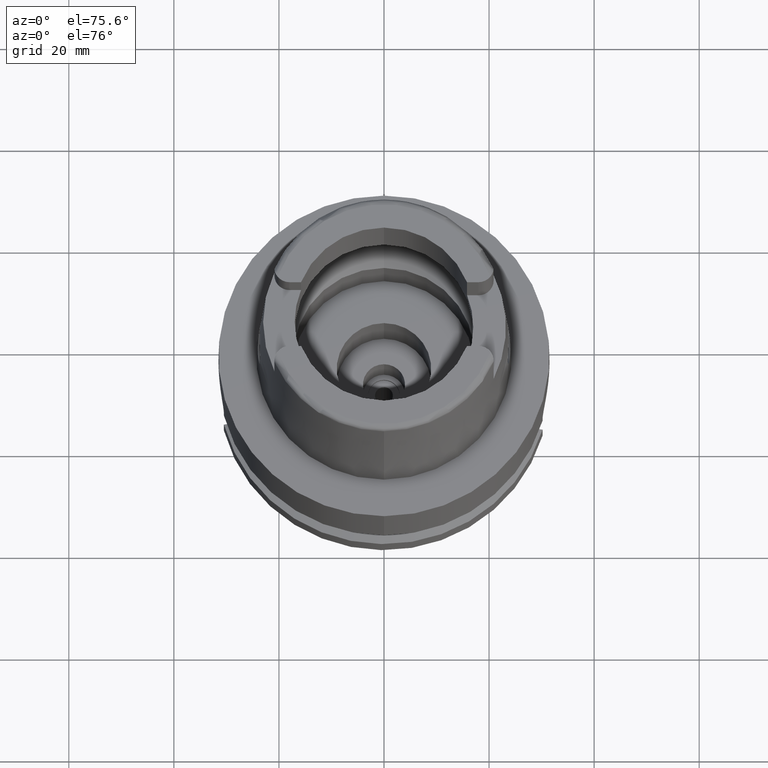
[diagram: clean part render]
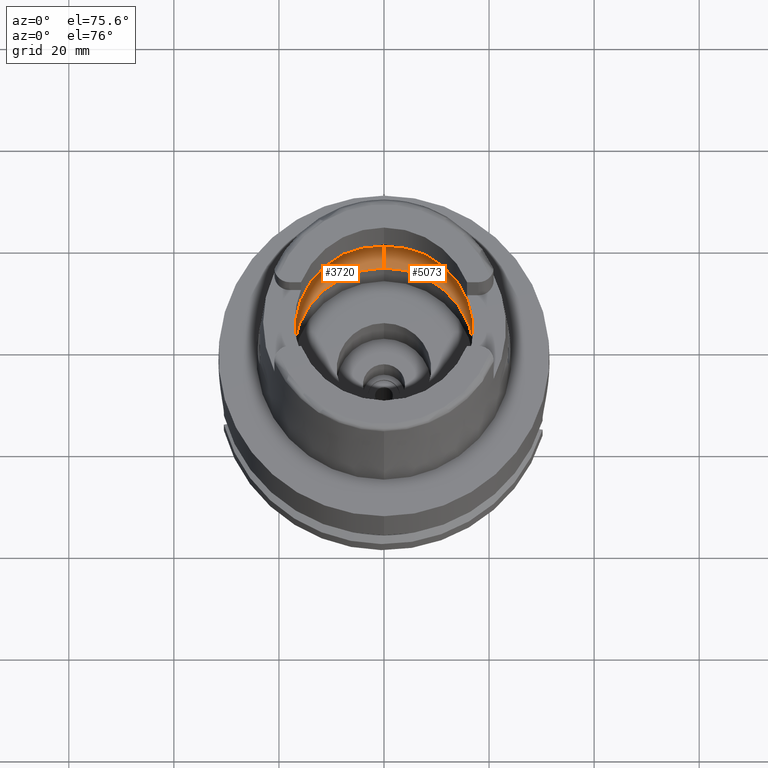
[diagram: same view with one multi-face feature highlighted, each face labeled with its STEP entity id]
A machine part, auxiliary view. The highlighted faces form ONE feature: a constant-radius fillet chain: 2 tangent blend faces with common blend radius 8 mm. The faces share edges in the B-rep.
Their STEP definitions:
[1] entity #5073 (Torus):
#65 = DIRECTION ( 'NONE',  ( 1.000000000000000000, 0.0000000000000000000, 0.0000000000000000000 ) ) ;
#118 = AXIS2_PLACEMENT_3D ( 'NONE', #5624, #868, #2601 ) ;
#164 = CARTESIAN_POINT ( 'NONE',  ( 19.84575864665999845, -2.479085262491000030, 6.186348233825000875 ) ) ;
#253 = DIRECTION ( 'NONE',  ( 0.0000000000000000000, -0.6562500000000006661, -0.7545435292281016393 ) ) ;
#258 = CARTESIAN_POINT ( 'NONE',  ( 19.92391832594157819, 1.379661882598573808, 5.512959091754853880 ) ) ;
#309 = ORIENTED_EDGE ( 'NONE', *, *, #5531, .F. ) ;
#391 = EDGE_CURVE ( 'NONE', #955, #5615, #1317, .T. ) ;
#407 = CARTESIAN_POINT ( 'NONE',  ( 19.92607280685966842, -1.317062051744477991, 5.488890658955079438 ) ) ;
#411 = ORIENTED_EDGE ( 'NONE', *, *, #391, .F. ) ;
#442 = B_SPLINE_CURVE_WITH_KNOTS ( 'NONE', 3,
 ( #2021, #4118, #1920, #1507, #1538, #3266, #3295, #3240, #258, #2444, #3668, #643, #1169, #3696, #4969 ),
 .UNSPECIFIED., .F., .F.,
 ( 4, 2, 2, 1, 1, 1, 2, 2, 4 ),
 ( 0.0000000000000000000, 0.2499999999999967804, 0.3749999999999953371, 0.4374999999999946709, 0.4687499999999943934, 0.4843749999999942824, 0.4921874999999941713, 0.4999999999999941158, 1.000000000000000000 ),
 .UNSPECIFIED. ) ;
#465 = CARTESIAN_POINT ( 'NONE',  ( 19.94340237805593219, -0.4850180019504579665, 5.274610396127643597 ) ) ;
#563 = TOROIDAL_SURFACE ( 'NONE', #3028, 12.00000000000000000, 8.000000000000000000 ) ;
#643 = CARTESIAN_POINT ( 'NONE',  ( 19.92547292124042002, 1.334858430821708408, 5.495617893788528718 ) ) ;
#674 = FACE_OUTER_BOUND ( 'NONE', #2889, .T. ) ;
#688 = EDGE_CURVE ( 'NONE', #959, #3948, #2079, .T. ) ;
#716 = CARTESIAN_POINT ( 'NONE',  ( 0.0000000000000000000, 1.300407714776999850E-14, 6.186348233825000875 ) ) ;
#823 = CIRCLE ( 'NONE', #1553, 20.00000000000000000 ) ;
#835 = CIRCLE ( 'NONE', #2111, 7.999999999999992895 ) ;
#868 = DIRECTION ( 'NONE',  ( 0.0000000000000000000, 0.0000000000000000000, -1.000000000000000000 ) ) ;
#888 = CARTESIAN_POINT ( 'NONE',  ( 19.93856665794375260, -0.8185641883581231681, 5.338679171357463282 ) ) ;
#912 = CARTESIAN_POINT ( 'NONE',  ( 19.94501428475999916, 0.0000000000000000000, 5.250000000000000000 ) ) ;
#955 = VERTEX_POINT ( 'NONE', #2980 ) ;
#959 = VERTEX_POINT ( 'NONE', #4686 ) ;
#1113 = CIRCLE ( 'NONE', #1918, 17.25000000000000000 ) ;
#1169 = CARTESIAN_POINT ( 'NONE',  ( 19.93856764937210002, 0.9457748455398172771, 5.348171637976009585 ) ) ;
#1237 = CARTESIAN_POINT ( 'NONE',  ( 19.92591688602272626, -1.321756895853151592, 5.490652547651766469 ) ) ;
#1274 = ORIENTED_EDGE ( 'NONE', *, *, #4538, .F. ) ;
#1317 = CIRCLE ( 'NONE', #4024, 7.999999999999992895 ) ;
#1474 = CARTESIAN_POINT ( 'NONE',  ( 0.0000000000000000000, -12.00000000000000000, 6.186348233825000875 ) ) ;
#1507 = CARTESIAN_POINT ( 'NONE',  ( 19.90056963212105856, 1.871013146673759620, 5.748159224276529145 ) ) ;
#1538 = CARTESIAN_POINT ( 'NONE',  ( 19.90654648685201167, 1.769930501896109565, 5.691839127009703958 ) ) ;
#1553 = AXIS2_PLACEMENT_3D ( 'NONE', #716, #4674, #3450 ) ;
#1918 = AXIS2_PLACEMENT_3D ( 'NONE', #2587, #5208, #3844 ) ;
#1920 = CARTESIAN_POINT ( 'NONE',  ( 19.88059069913698096, 2.158394907212736413, 5.925188472889173497 ) ) ;
#2021 = CARTESIAN_POINT ( 'NONE',  ( 19.84575864665999845, 2.479085262491000030, 6.186348233825000875 ) ) ;
#2079 = B_SPLINE_CURVE_WITH_KNOTS ( 'NONE', 3,
 ( #912, #2144, #465, #888, #2620, #4353, #2647, #2562, #4383, #2993, #407, #1237, #4723, #3420, #4298 ),
 .UNSPECIFIED., .F., .F.,
 ( 4, 2, 2, 1, 1, 1, 2, 2, 4 ),
 ( 0.0000000000000000000, 0.2499999999999981681, 0.3749999999999972244, 0.4374999999999969469, 0.4687499999999968359, 0.4843749999999966138, 0.4921874999999966138, 0.4999999999999966693, 1.000000000000000000 ),
 .UNSPECIFIED. ) ;
#2086 = EDGE_CURVE ( 'NONE', #2173, #959, #442, .T. ) ;
#2111 = AXIS2_PLACEMENT_3D ( 'NONE', #1474, #3690, #253 ) ;
#2144 = CARTESIAN_POINT ( 'NONE',  ( 19.94501428475999916, -0.2480014560080615882, 5.249999999999998224 ) ) ;
#2173 = VERTEX_POINT ( 'NONE', #3013 ) ;
#2328 = CARTESIAN_POINT ( 'NONE',  ( 0.0000000000000000000, 1.300407714776999850E-14, 6.186348233825000875 ) ) ;
#2444 = CARTESIAN_POINT ( 'NONE',  ( 19.92467892137705832, 1.357954799801602386, 5.504500142502863902 ) ) ;
#2562 = CARTESIAN_POINT ( 'NONE',  ( 19.92840408989551904, -1.244367450968541844, 5.462313551719105043 ) ) ;
#2570 = DIRECTION ( 'NONE',  ( 0.0000000000000000000, 0.6562500000000006661, -0.7545435292281016393 ) ) ;
#2587 = CARTESIAN_POINT ( 'NONE',  ( 0.0000000000000000000, 1.300407714776999850E-14, 0.1500000000000999700 ) ) ;
#2600 = CARTESIAN_POINT ( 'NONE',  ( 0.0000000000000000000, 12.00000000000000000, 6.186348233825000875 ) ) ;
#2601 = DIRECTION ( 'NONE',  ( 0.9922879323327794543, -0.1239542631244973381, 0.0000000000000000000 ) ) ;
#2620 = CARTESIAN_POINT ( 'NONE',  ( 19.93655177456368932, -0.9261205406783343808, 5.364559693695562181 ) ) ;
#2647 = CARTESIAN_POINT ( 'NONE',  ( 19.93096047318400110, -1.157940144303397423, 5.432579051026481309 ) ) ;
#2827 = VERTEX_POINT ( 'NONE', #3914 ) ;
#2889 = EDGE_LOOP ( 'NONE', ( #5225, #5451, #411, #1274, #4867, #309, #4939 ) ) ;
#2961 = EDGE_CURVE ( 'NONE', #5615, #2173, #823, .T. ) ;
#2980 = CARTESIAN_POINT ( 'NONE',  ( 0.0000000000000000000, 17.25000000000000000, 0.1499999999999999944 ) ) ;
#2993 = CARTESIAN_POINT ( 'NONE',  ( 19.92646948702511267, -1.305026996693501085, 5.484399654281021164 ) ) ;
#3013 = CARTESIAN_POINT ( 'NONE',  ( 19.84575864665999845, 2.479085262491000030, 6.186348233825000875 ) ) ;
#3028 = AXIS2_PLACEMENT_3D ( 'NONE', #2328, #4572, #3697 ) ;
#3240 = CARTESIAN_POINT ( 'NONE',  ( 19.92208759317466615, 1.429891859895263462, 5.533074159369055778 ) ) ;
#3266 = CARTESIAN_POINT ( 'NONE',  ( 19.91448758455283041, 1.610401092888342545, 5.612873060275781256 ) ) ;
#3295 = CARTESIAN_POINT ( 'NONE',  ( 19.91820208730434061, 1.528663205433574479, 5.574770377084651507 ) ) ;
#3420 = CARTESIAN_POINT ( 'NONE',  ( 19.88332298889634231, -2.178372382208180191, 5.921392606155435168 ) ) ;
#3450 = DIRECTION ( 'NONE',  ( 0.0000000000000000000, 1.000000000000000000, 0.0000000000000000000 ) ) ;
#3668 = CARTESIAN_POINT ( 'NONE',  ( 19.92518065070697730, 1.343443539031581091, 5.498897323770547629 ) ) ;
#3690 = DIRECTION ( 'NONE',  ( -1.000000000000000000, 0.0000000000000000000, 0.0000000000000000000 ) ) ;
#3696 = CARTESIAN_POINT ( 'NONE',  ( 19.94501428475999560, 0.4959066315530564206, 5.249999999999998224 ) ) ;
#3697 = DIRECTION ( 'NONE',  ( 0.0000000000000000000, -1.000000000000000000, 0.0000000000000000000 ) ) ;
#3844 = DIRECTION ( 'NONE',  ( 0.0000000000000000000, -1.000000000000000000, 0.0000000000000000000 ) ) ;
#3889 = EDGE_CURVE ( 'NONE', #4502, #2827, #835, .T. ) ;
#3914 = CARTESIAN_POINT ( 'NONE',  ( 0.0000000000000000000, -20.00000000000000000, 6.186348233825000875 ) ) ;
#3948 = VERTEX_POINT ( 'NONE', #164 ) ;
#4024 = AXIS2_PLACEMENT_3D ( 'NONE', #2600, #65, #2570 ) ;
#4118 = CARTESIAN_POINT ( 'NONE',  ( 19.86454025209263818, 2.328733350789800483, 6.053874409961354175 ) ) ;
#4215 = CIRCLE ( 'NONE', #118, 20.00000000000001421 ) ;
#4219 = CARTESIAN_POINT ( 'NONE',  ( 0.0000000000000000000, 20.00000000000000000, 6.186348233825000875 ) ) ;
#4298 = CARTESIAN_POINT ( 'NONE',  ( 19.84575864665999845, -2.479085262491000030, 6.186348233825000875 ) ) ;
#4353 = CARTESIAN_POINT ( 'NONE',  ( 19.93292498447956262, -1.081634995804885646, 5.408973391216312265 ) ) ;
#4383 = CARTESIAN_POINT ( 'NONE',  ( 19.92705978489038188, -1.286927501587694644, 5.477698479241642993 ) ) ;
#4502 = VERTEX_POINT ( 'NONE', #5612 ) ;
#4538 = EDGE_CURVE ( 'NONE', #4502, #955, #1113, .T. ) ;
#4572 = DIRECTION ( 'NONE',  ( 0.0000000000000000000, 0.0000000000000000000, -1.000000000000000000 ) ) ;
#4674 = DIRECTION ( 'NONE',  ( 0.0000000000000000000, 0.0000000000000000000, -1.000000000000000000 ) ) ;
#4686 = CARTESIAN_POINT ( 'NONE',  ( 19.94501428475999916, 0.0000000000000000000, 5.250000000000000000 ) ) ;
#4723 = CARTESIAN_POINT ( 'NONE',  ( 19.90996057478010073, -1.795819818033601134, 5.670329850203941646 ) ) ;
#4867 = ORIENTED_EDGE ( 'NONE', *, *, #3889, .T. ) ;
#4939 = ORIENTED_EDGE ( 'NONE', *, *, #688, .F. ) ;
#4969 = CARTESIAN_POINT ( 'NONE',  ( 19.94501428475999916, 0.0000000000000000000, 5.250000000000000000 ) ) ;
#5073 = ADVANCED_FACE ( 'NONE', ( #674 ), #563, .F. ) ;
#5208 = DIRECTION ( 'NONE',  ( 0.0000000000000000000, 0.0000000000000000000, 1.000000000000000000 ) ) ;
#5225 = ORIENTED_EDGE ( 'NONE', *, *, #2086, .F. ) ;
#5451 = ORIENTED_EDGE ( 'NONE', *, *, #2961, .F. ) ;
#5531 = EDGE_CURVE ( 'NONE', #3948, #2827, #4215, .T. ) ;
#5612 = CARTESIAN_POINT ( 'NONE',  ( 0.0000000000000000000, -17.25000000000000000, 0.1500000000000999700 ) ) ;
#5615 = VERTEX_POINT ( 'NONE', #4219 ) ;
#5624 = CARTESIAN_POINT ( 'NONE',  ( 0.0000000000000000000, 1.300407714776999850E-14, 6.186348233825000875 ) ) ;
[2] entity #3720 (Torus):
#21 = CIRCLE ( 'NONE', #3198, 20.00000000000000000 ) ;
#39 = CARTESIAN_POINT ( 'NONE',  ( -19.92591893665112224, 1.321589401495853577, 5.490589463356736033 ) ) ;
#44 = CARTESIAN_POINT ( 'NONE',  ( 0.0000000000000000000, 1.300407714776999850E-14, 6.186348233825000875 ) ) ;
#62 = CARTESIAN_POINT ( 'NONE',  ( -19.93856733639333711, 0.8184016122553290362, 5.338643284459297256 ) ) ;
#65 = DIRECTION ( 'NONE',  ( 1.000000000000000000, 0.0000000000000000000, 0.0000000000000000000 ) ) ;
#75 = CARTESIAN_POINT ( 'NONE',  ( -19.92208503460744140, -1.430038535463151961, 5.533134759045998052 ) ) ;
#84 = CARTESIAN_POINT ( 'NONE',  ( -19.92840583769821805, 1.244196210291986793, 5.462253310886856283 ) ) ;
#253 = DIRECTION ( 'NONE',  ( 0.0000000000000000000, -0.6562500000000006661, -0.7545435292281016393 ) ) ;
#294 = CIRCLE ( 'NONE', #5285, 17.25000000000000000 ) ;
#391 = EDGE_CURVE ( 'NONE', #955, #5615, #1317, .T. ) ;
#435 = CARTESIAN_POINT ( 'NONE',  ( -19.92517794959958621, -1.343610331872224783, 5.498961333861672962 ) ) ;
#446 = DIRECTION ( 'NONE',  ( -0.9922879323327794543, 0.1239542631244973381, 0.0000000000000000000 ) ) ;
#467 = CARTESIAN_POINT ( 'NONE',  ( -19.92706167414716134, 1.286758763267425554, 5.477636828631165855 ) ) ;
#480 = DIRECTION ( 'NONE',  ( 0.0000000000000000000, -1.000000000000000000, 0.0000000000000000000 ) ) ;
#699 = DIRECTION ( 'NONE',  ( 0.0000000000000000000, 0.0000000000000000000, 1.000000000000000000 ) ) ;
#835 = CIRCLE ( 'NONE', #2111, 7.999999999999992895 ) ;
#849 = AXIS2_PLACEMENT_3D ( 'NONE', #44, #4334, #446 ) ;
#856 = CARTESIAN_POINT ( 'NONE',  ( -19.88058967141838096, -2.158413397973318215, 5.925203673423930617 ) ) ;
#955 = VERTEX_POINT ( 'NONE', #2980 ) ;
#1193 = VERTEX_POINT ( 'NONE', #5465 ) ;
#1258 = ORIENTED_EDGE ( 'NONE', *, *, #4504, .F. ) ;
#1288 = CARTESIAN_POINT ( 'NONE',  ( -19.84575864665999845, -2.479085262491000030, 6.186348233825000875 ) ) ;
#1317 = CIRCLE ( 'NONE', #4024, 7.999999999999992895 ) ;
#1323 = VERTEX_POINT ( 'NONE', #3985 ) ;
#1349 = CARTESIAN_POINT ( 'NONE',  ( -19.92647143839581148, 1.304859504442483997, 5.484337483335712804 ) ) ;
#1404 = CARTESIAN_POINT ( 'NONE',  ( -19.94501428475999916, 0.2479298819758197214, 5.250000000000000000 ) ) ;
#1474 = CARTESIAN_POINT ( 'NONE',  ( 0.0000000000000000000, -12.00000000000000000, 6.186348233825000875 ) ) ;
#1484 = CIRCLE ( 'NONE', #849, 20.00000000000001421 ) ;
#1667 = EDGE_CURVE ( 'NONE', #1931, #1193, #2615, .T. ) ;
#1742 = TOROIDAL_SURFACE ( 'NONE', #3286, 12.00000000000000000, 8.000000000000000000 ) ;
#1760 = DIRECTION ( 'NONE',  ( 0.0000000000000000000, 0.0000000000000000000, -1.000000000000000000 ) ) ;
#1767 = CARTESIAN_POINT ( 'NONE',  ( -19.92467624382532065, -1.358118166560716045, 5.504563616461148001 ) ) ;
#1816 = CARTESIAN_POINT ( 'NONE',  ( -19.94340254766833098, 0.4848963393951380429, 5.274596353473929966 ) ) ;
#1931 = VERTEX_POINT ( 'NONE', #5287 ) ;
#2111 = AXIS2_PLACEMENT_3D ( 'NONE', #1474, #3690, #253 ) ;
#2169 = CARTESIAN_POINT ( 'NONE',  ( -19.94501428475999916, -0.4960410447443924786, 5.249999999999998224 ) ) ;
#2174 = CARTESIAN_POINT ( 'NONE',  ( -19.92607479997090181, 1.316895428534838430, 5.488828160326498562 ) ) ;
#2190 = FACE_OUTER_BOUND ( 'NONE', #2315, .T. ) ;
#2200 = CARTESIAN_POINT ( 'NONE',  ( -19.90996163222827420, 1.795769164605748314, 5.670285425948012659 ) ) ;
#2252 = CARTESIAN_POINT ( 'NONE',  ( 0.0000000000000000000, 1.300407714776999850E-14, 6.186348233825000875 ) ) ;
#2253 = CARTESIAN_POINT ( 'NONE',  ( -19.93655266502874923, 0.9259499426782410447, 5.364516364714504881 ) ) ;
#2315 = EDGE_LOOP ( 'NONE', ( #1258, #5258, #5351, #5526, #3645, #4549, #3547 ) ) ;
#2349 = DIRECTION ( 'NONE',  ( 0.0000000000000000000, 1.000000000000000000, 0.0000000000000000000 ) ) ;
#2570 = DIRECTION ( 'NONE',  ( 0.0000000000000000000, 0.6562500000000006661, -0.7545435292281016393 ) ) ;
#2591 = CARTESIAN_POINT ( 'NONE',  ( -19.91819969907428245, -1.528787881860978359, 5.574826406028884129 ) ) ;
#2600 = CARTESIAN_POINT ( 'NONE',  ( 0.0000000000000000000, 12.00000000000000000, 6.186348233825000875 ) ) ;
#2615 = B_SPLINE_CURVE_WITH_KNOTS ( 'NONE', 3,
 ( #1288, #4380, #856, #3765, #5507, #4221, #2591, #75, #3929, #1767, #435, #3361, #3020, #2169, #4754 ),
 .UNSPECIFIED., .F., .F.,
 ( 4, 2, 2, 1, 1, 1, 2, 2, 4 ),
 ( 0.0000000000000000000, 0.2499999999999968914, 0.3749999999999950595, 0.4374999999999942268, 0.4687499999999937272, 0.4843749999999936162, 0.4921874999999938383, 0.4999999999999941158, 1.000000000000000000 ),
 .UNSPECIFIED. ) ;
#2827 = VERTEX_POINT ( 'NONE', #3914 ) ;
#2980 = CARTESIAN_POINT ( 'NONE',  ( 0.0000000000000000000, 17.25000000000000000, 0.1499999999999999944 ) ) ;
#3020 = CARTESIAN_POINT ( 'NONE',  ( -19.93856674119000871, -0.9459643382266247347, 5.348222180790393132 ) ) ;
#3077 = CARTESIAN_POINT ( 'NONE',  ( -19.94501428475999916, 0.0000000000000000000, 5.250000000000000000 ) ) ;
#3101 = CARTESIAN_POINT ( 'NONE',  ( -19.88332336789493837, 2.178369348231663061, 5.921389932943862178 ) ) ;
#3118 = CARTESIAN_POINT ( 'NONE',  ( 0.0000000000000000000, 1.300407714776999850E-14, 6.186348233825000875 ) ) ;
#3157 = EDGE_CURVE ( 'NONE', #1193, #1323, #4966, .T. ) ;
#3198 = AXIS2_PLACEMENT_3D ( 'NONE', #2252, #3416, #3387 ) ;
#3236 = CARTESIAN_POINT ( 'NONE',  ( 0.0000000000000000000, 1.300407714776999850E-14, 0.1500000000000999700 ) ) ;
#3286 = AXIS2_PLACEMENT_3D ( 'NONE', #3118, #1760, #480 ) ;
#3361 = CARTESIAN_POINT ( 'NONE',  ( -19.92547016831343853, -1.335028391746179377, 5.495682638901469907 ) ) ;
#3387 = DIRECTION ( 'NONE',  ( 0.0000000000000000000, -1.000000000000000000, 0.0000000000000000000 ) ) ;
#3416 = DIRECTION ( 'NONE',  ( 0.0000000000000000000, 0.0000000000000000000, -1.000000000000000000 ) ) ;
#3504 = CARTESIAN_POINT ( 'NONE',  ( -19.93096195199203180, 1.157765540341131993, 5.432522363494912021 ) ) ;
#3547 = ORIENTED_EDGE ( 'NONE', *, *, #1667, .F. ) ;
#3645 = ORIENTED_EDGE ( 'NONE', *, *, #5532, .F. ) ;
#3690 = DIRECTION ( 'NONE',  ( -1.000000000000000000, 0.0000000000000000000, 0.0000000000000000000 ) ) ;
#3720 = ADVANCED_FACE ( 'NONE', ( #2190 ), #1742, .F. ) ;
#3765 = CARTESIAN_POINT ( 'NONE',  ( -19.90056792326588564, -1.871072945705496871, 5.748194156554230716 ) ) ;
#3889 = EDGE_CURVE ( 'NONE', #4502, #2827, #835, .T. ) ;
#3914 = CARTESIAN_POINT ( 'NONE',  ( 0.0000000000000000000, -20.00000000000000000, 6.186348233825000875 ) ) ;
#3928 = EDGE_CURVE ( 'NONE', #955, #4502, #294, .T. ) ;
#3929 = CARTESIAN_POINT ( 'NONE',  ( -19.92391568384004685, -1.379820152732080807, 5.513021742193741304 ) ) ;
#3934 = CARTESIAN_POINT ( 'NONE',  ( -19.84575864665999845, 2.479085262491000030, 6.186348233825000875 ) ) ;
#3985 = CARTESIAN_POINT ( 'NONE',  ( -19.84575864665999845, 2.479085262491000030, 6.186348233825000875 ) ) ;
#4024 = AXIS2_PLACEMENT_3D ( 'NONE', #2600, #65, #2570 ) ;
#4219 = CARTESIAN_POINT ( 'NONE',  ( 0.0000000000000000000, 20.00000000000000000, 6.186348233825000875 ) ) ;
#4221 = CARTESIAN_POINT ( 'NONE',  ( -19.91448534792933955, -1.610508948440850130, 5.612924528900707699 ) ) ;
#4334 = DIRECTION ( 'NONE',  ( 0.0000000000000000000, 0.0000000000000000000, -1.000000000000000000 ) ) ;
#4380 = CARTESIAN_POINT ( 'NONE',  ( -19.86453971831059562, -2.328737623859564287, 6.053878174927723066 ) ) ;
#4431 = CARTESIAN_POINT ( 'NONE',  ( -19.93292625657250738, 1.081460392890758682, 5.408920836530865195 ) ) ;
#4502 = VERTEX_POINT ( 'NONE', #5612 ) ;
#4504 = EDGE_CURVE ( 'NONE', #2827, #1931, #21, .T. ) ;
#4549 = ORIENTED_EDGE ( 'NONE', *, *, #3157, .F. ) ;
#4754 = CARTESIAN_POINT ( 'NONE',  ( -19.94501428475999916, 0.0000000000000000000, 5.250000000000000000 ) ) ;
#4966 = B_SPLINE_CURVE_WITH_KNOTS ( 'NONE', 3,
 ( #3077, #1404, #1816, #62, #2253, #4431, #3504, #84, #467, #1349, #2174, #39, #2200, #3101, #3934 ),
 .UNSPECIFIED., .F., .F.,
 ( 4, 2, 2, 1, 1, 1, 2, 2, 4 ),
 ( 0.0000000000000000000, 0.2500000000000007216, 0.3750000000000008882, 0.4375000000000010547, 0.4687500000000009992, 0.4843750000000011657, 0.4921875000000013323, 0.5000000000000014433, 1.000000000000000000 ),
 .UNSPECIFIED. ) ;
#5258 = ORIENTED_EDGE ( 'NONE', *, *, #3889, .F. ) ;
#5285 = AXIS2_PLACEMENT_3D ( 'NONE', #3236, #699, #2349 ) ;
#5287 = CARTESIAN_POINT ( 'NONE',  ( -19.84575864665999845, -2.479085262491000030, 6.186348233825000875 ) ) ;
#5351 = ORIENTED_EDGE ( 'NONE', *, *, #3928, .F. ) ;
#5465 = CARTESIAN_POINT ( 'NONE',  ( -19.94501428475999916, 0.0000000000000000000, 5.250000000000000000 ) ) ;
#5507 = CARTESIAN_POINT ( 'NONE',  ( -19.90654456091268187, -1.770007383642301590, 5.691881026689957324 ) ) ;
#5526 = ORIENTED_EDGE ( 'NONE', *, *, #391, .T. ) ;
#5532 = EDGE_CURVE ( 'NONE', #1323, #5615, #1484, .T. ) ;
#5612 = CARTESIAN_POINT ( 'NONE',  ( 0.0000000000000000000, -17.25000000000000000, 0.1500000000000999700 ) ) ;
#5615 = VERTEX_POINT ( 'NONE', #4219 ) ;